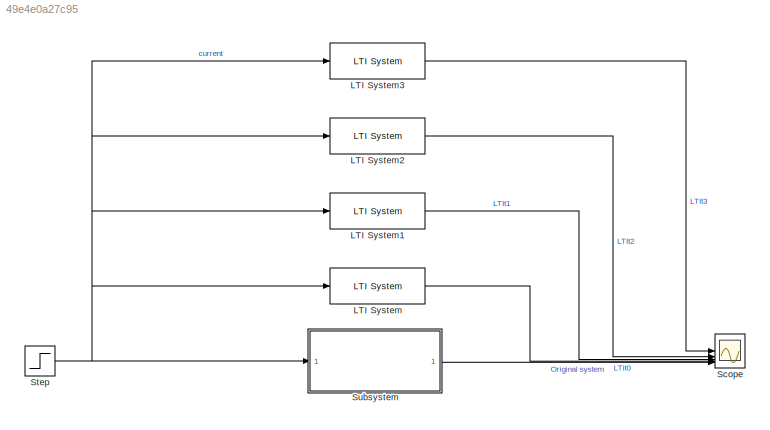
MODEL slx_49e4e0a27c95
KIND model
CONFIG AbsTol = auto
CONFIG EnableMultiTasking = off
CONFIG FixedStep = auto
CONFIG MaxStep = auto
CONFIG MinStep = auto
CONFIG RelTol = 1e-3
CONFIG SampleTimeConstraint = Unconstrained
CONFIG SolverName = VariableStepAuto
CONFIG StartTime = 0.0
CONFIG StopTime = 10.0
BLOCK [Reference] LTI System  REF=cstblocks/LTI System
  SourceBlock = cstblocks/LTI System
  SourceType = LTI Block
BLOCK [Reference] LTI System1  REF=cstblocks/LTI System
  SourceBlock = cstblocks/LTI System
  SourceType = LTI Block
BLOCK [Reference] LTI System2  REF=cstblocks/LTI System
  SourceBlock = cstblocks/LTI System
  SourceType = LTI Block
BLOCK [Reference] LTI System3  REF=cstblocks/LTI System
  SourceBlock = cstblocks/LTI System
  SourceType = LTI Block
BLOCK [Scope] Scope
  Floating = off
  NumInputPorts = 5
  ScopeSpecificationString = Simulink.scopes.TimeScopeBlockCfg('CurrentConfiguration', extmgr.ConfigurationSet(extmgr.Configuration('Core','General UI',true),extmgr.Configuration('Core','Source UI',true),extmgr.Configuration('Sources','WiredSimulink',true),extmgr.Configuration('Visuals','Time Domain',true,'SerializedDisplays',{struct('MinYLimReal','-3.76501','MaxYLimReal','33.88506','YLabelReal','','MinYLimMag','0.00000','Max...<+1538ch>
BLOCK [Step] Step
  SampleTime = 0
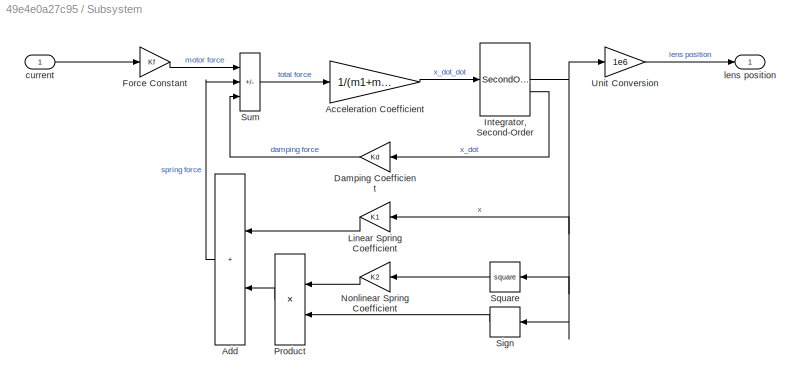
BLOCK [SubSystem] Subsystem
BLOCK [Gain] Subsystem/Acceleration Coefficient
  Gain = 1/(m1+m2)
BLOCK [Sum] Subsystem/Add
  IconShape = rectangular
BLOCK [Gain] Subsystem/Damping Coefficient
  Gain = Kd
BLOCK [Gain] Subsystem/Force Constant
  Gain = Kf
BLOCK [SecondOrderIntegrator] Subsystem/Integrator, Second-Order
  ICX = 0
  IgnoreStateLimitsAndResetForLinearization = on
  LimitX = on
  LowerLimitX = 0
  UpperLimitX = 1e-3
BLOCK [Gain] Subsystem/Linear Spring Coefficient
  Gain = K1
BLOCK [Gain] Subsystem/Nonlinear Spring Coefficient
  Gain = K2
BLOCK [Product] Subsystem/Product
BLOCK [Signum] Subsystem/Sign
BLOCK [Math] Subsystem/Square
  Operator = square
BLOCK [Sum] Subsystem/Sum
  IconShape = rectangular
  Inputs = +--
BLOCK [Gain] Subsystem/Unit Conversion
  Gain = 1e6
BLOCK [Inport] Subsystem/current
BLOCK [Outport] Subsystem/lens position
LINE LTI System1:1 -> Scope:3
LINE LTI System2:1 -> Scope:2
LINE LTI System3:1 -> Scope:1
LINE LTI System:1 -> Scope:4
NET Step:1 -> LTI System1:1, LTI System2:1, LTI System3:1, LTI System:1, Subsystem:1
LINE Subsystem/Acceleration Coefficient:1 -> Subsystem/Integrator, Second-Order:1
LINE Subsystem/Add:1 -> Subsystem/Sum:2
LINE Subsystem/Damping Coefficient:1 -> Subsystem/Sum:3
LINE Subsystem/Force Constant:1 -> Subsystem/Sum:1
NET Subsystem/Integrator, Second-Order:1 -> Subsystem/Linear Spring Coefficient:1, Subsystem/Sign:1, Subsystem/Square:1, Subsystem/Unit Conversion:1
LINE Subsystem/Integrator, Second-Order:2 -> Subsystem/Damping Coefficient:1
LINE Subsystem/Linear Spring Coefficient:1 -> Subsystem/Add:1
LINE Subsystem/Nonlinear Spring Coefficient:1 -> Subsystem/Product:1
LINE Subsystem/Product:1 -> Subsystem/Add:2
LINE Subsystem/Sign:1 -> Subsystem/Product:2
LINE Subsystem/Square:1 -> Subsystem/Nonlinear Spring Coefficient:1
LINE Subsystem/Sum:1 -> Subsystem/Acceleration Coefficient:1
LINE Subsystem/Unit Conversion:1 -> Subsystem/lens position:1
LINE Subsystem/current:1 -> Subsystem/Force Constant:1
LINE Subsystem:1 -> Scope:5
note: NET lines group one-source signal fan-out (src -> all destinations, sorted); 1:1 wires keep LINE
